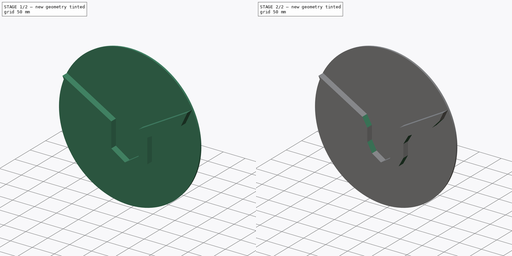
[diagram: build sequence overview — one tinted view per stage of 2, left to right]
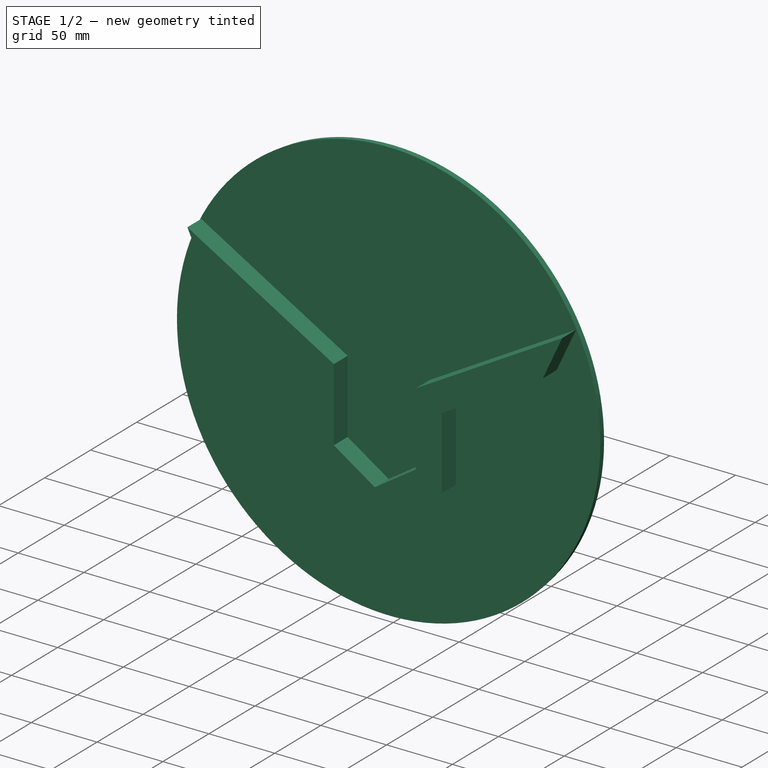
[diagram: stage 1 of 2 — iso view after this stage's code; geometry added in this stage tinted green]
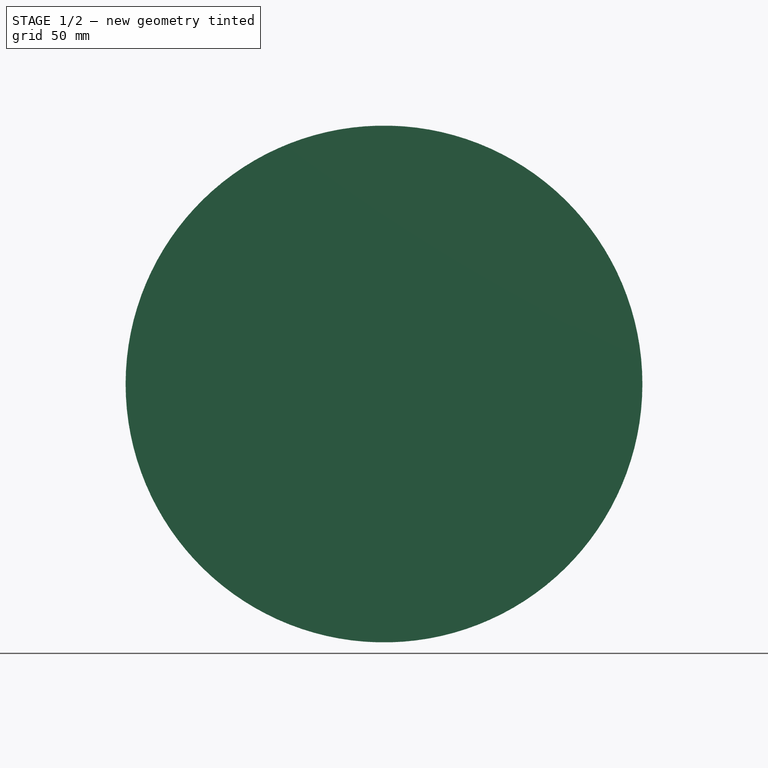
[diagram: stage 1 of 2 — front view after this stage's code; geometry added in this stage tinted green]
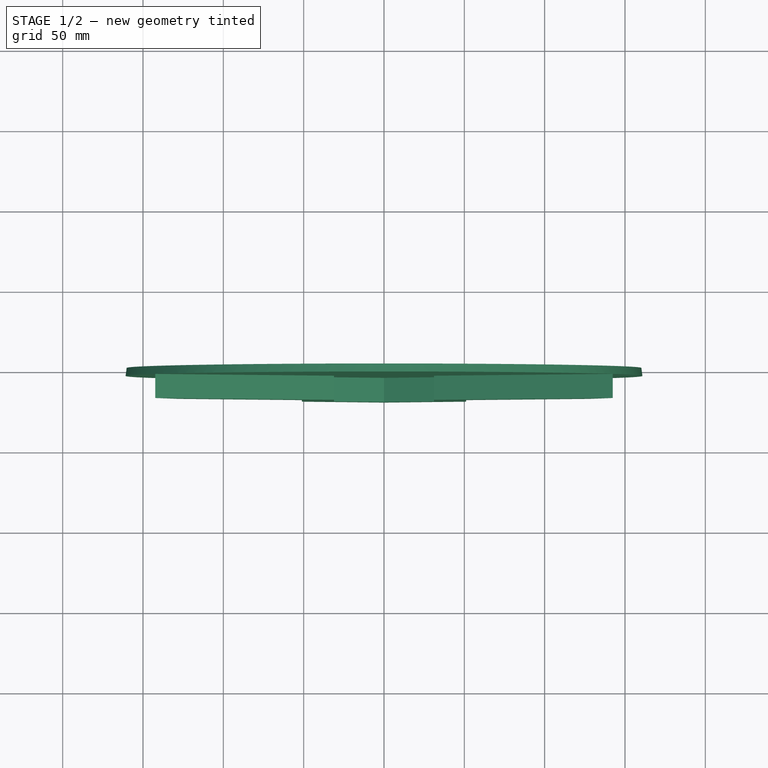
[diagram: stage 1 of 2 — top view after this stage's code; geometry added in this stage tinted green]
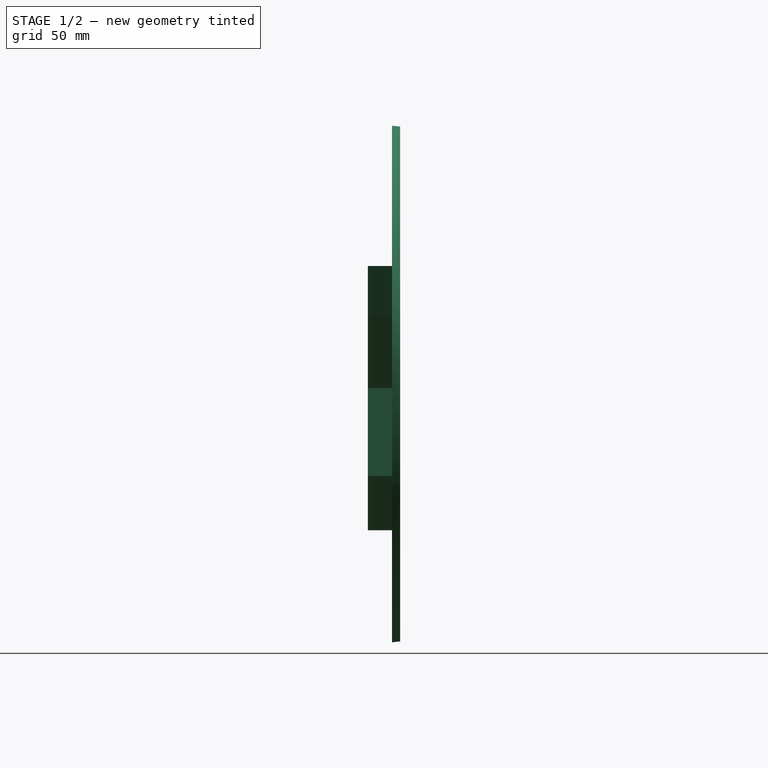
[diagram: stage 1 of 2 — right view after this stage's code; geometry added in this stage tinted green]
FCSTD DOCUMENT  (FreeCAD 1.0R39319 (Git))
Label: FirstFreeBuild
License: All rights reserved
LicenseURL: https://en.wikipedia.org/wiki/All_rights_reserved
objects: Sketcher::SketchObject×2, PartDesign::Pad×2, PartDesign::Chamfer×1, PartDesign::Body×1
note: 14 computed .brp shape members not serialized (recipe doc carries the construction recipe); baked Part::Feature solids carry a one-line shape summary decoded from their .brp

FEATURE [Sketcher::SketchObject] Sketch
  ArcFitTolerance = 1e-06
  AttachmentSupport = -> [XZ_Plane]
  FullyConstrained = false
  MakeInternals = false
  MapMode = 5
  Placement = pos=(0,0,0) rot=(1,0,0;1.5708rad)
  sketch-geometry (14):
    g0: LineSegment StartX=0 StartY=-88.6453 StartZ=0 EndX=51.1183 EndY=-54.9733 EndZ=0
    g1: LineSegment StartX=51.1183 StartY=-54.9733 StartZ=0 EndX=51.1183 EndY=0 EndZ=0
    g2: LineSegment StartX=51.1183 StartY=0 StartZ=0 EndX=127.67 EndY=44.1971 EndZ=0
    g3: LineSegment StartX=127.67 StartY=44.1971 StartZ=0 EndX=142.406 EndY=75.7991 EndZ=0
    g4: LineSegment StartX=142.406 StartY=75.7991 StartZ=0 EndX=31.1183 EndY=11.547 EndZ=0
    g5: LineSegment StartX=31.1183 StartY=11.547 StartZ=0 EndX=31.1183 EndY=-44.1984 EndZ=0
    g6: LineSegment StartX=31.1183 StartY=-44.1984 StartZ=0 EndX=-3.6e-15 EndY=-64.6962 EndZ=0
    g7: LineSegment StartX=0 StartY=-88.6453 StartZ=0 EndX=-51.1183 EndY=-54.9733 EndZ=0
    g8: LineSegment StartX=-51.1183 StartY=-54.9733 StartZ=0 EndX=-51.1183 EndY=0 EndZ=0
    g9: LineSegment StartX=-51.1183 StartY=0 StartZ=0 EndX=-127.67 EndY=44.1971 EndZ=0
    g10: LineSegment StartX=-127.67 StartY=44.1971 StartZ=0 EndX=-142.406 EndY=75.7991 EndZ=0
    g11: LineSegment StartX=-142.406 StartY=75.7991 StartZ=0 EndX=-31.1183 EndY=11.547 EndZ=0
    g12: LineSegment StartX=-31.1183 StartY=11.547 StartZ=0 EndX=-31.1183 EndY=-44.1984 EndZ=0
    g13: LineSegment StartX=-31.1183 StartY=-44.1984 StartZ=0 EndX=0 EndY=-64.6962 EndZ=0
  constraints (38):
    c: PointOnObject(g0,g-2)
    c: Coincident(g0,g1)
    c: PointOnObject(g1,g-1)
    c: Vertical(g1)
    c: Coincident(g1,g2)
    c: Coincident(g2,g3)
    c: Coincident(g3,g4)
    c: Coincident(g4,g5)
    c: Vertical(g5)
    c: Coincident(g5,g6)
    c: PointOnObject(g6,g-2)
    c: Coincident(g7,g8)
    c: Vertical(g8)
    c: Coincident(g8,g9)
    c: Coincident(g9,g10)
    c: Coincident(g10,g11)
    c: Coincident(g11,g12)
    c: Vertical(g12)
    c: Coincident(g12,g13)
    c: Horizontal(g10,g3)
    c: Horizontal(g4,g11)
    c: Horizontal(g1,g8)
    c: Horizontal(g12,g5)
    c: Horizontal(g7,g0)
    c: Distance(g1,g5) = 20
    c: Parallel(g4,g2)
    c: Distance(g4,g2) = 20
    c: Parallel(g6,g0)
    c: Parallel(g13,g7)
    c: Distance(g0,g6) = 20
    c: Distance(g7,g13) = 20
    c: Parallel(g11,g9)
    c: Distance(g9,g11) = 20
    c: Angle(g10,g11) = 0.610865
    c: Angle(g4,g3) = 0.610865
    c: Coincident(g7,g0)
    c: Coincident(g6,g13)
    c: Angle(g5,g4) = 2.0944
FEATURE [PartDesign::Pad] Pad
  Direction = (0,-1,2e-16)
  Length = 20
  Length2 = 10
  Placement = pos=(0,0,0) rot=(1,0,0;1.5708rad)
  Profile = -> Sketch
  ReferenceAxis = -> Sketch [N_Axis]
  Refine = true
  Suppressed = false
  Type = 0
FEATURE [Sketcher::SketchObject] Sketch001
  ArcFitTolerance = 1e-06
  AttachmentSupport = -> [XZ_Plane]
  ExternalGeometry = -> [Pad]
  FullyConstrained = false
  MakeInternals = false
  MapMode = 5
  Placement = pos=(0,0,0) rot=(1,0,0;1.5708rad)
  sketch-geometry (1):
    g0: Circle CenterX=-1.787e-13 CenterY=2.38974 CenterZ=0 NormalX=0 NormalY=0 NormalZ=1 AngleXU=0 Radius=160.214
  constraints (2):
    c: PointOnObject(g-4,g0)
    c: PointOnObject(g-3,g0)
FEATURE [PartDesign::Pad] Pad001
  BaseFeature = -> Pad
  Direction = (0,-1,2e-16)
  Length = 5
  Length2 = 10
  Placement = pos=(0,0,0) rot=(1,0,0;1.5708rad)
  Profile = -> Sketch001
  ReferenceAxis = -> Sketch001 [N_Axis]
  Refine = true
  Suppressed = false
  TaperAngle = 7
  Type = 0
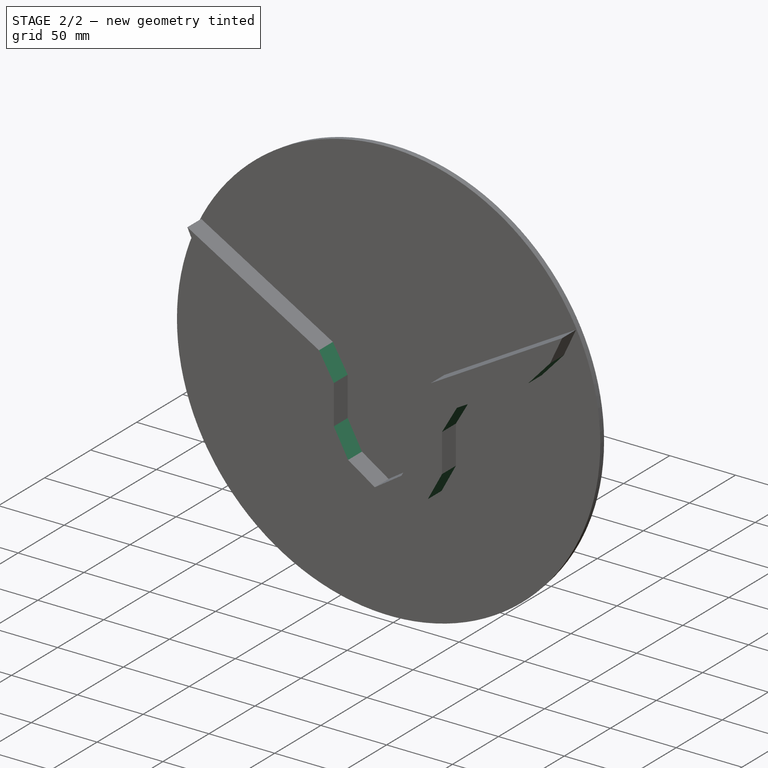
[diagram: stage 2 of 2 — iso view after this stage's code; geometry added in this stage tinted green]
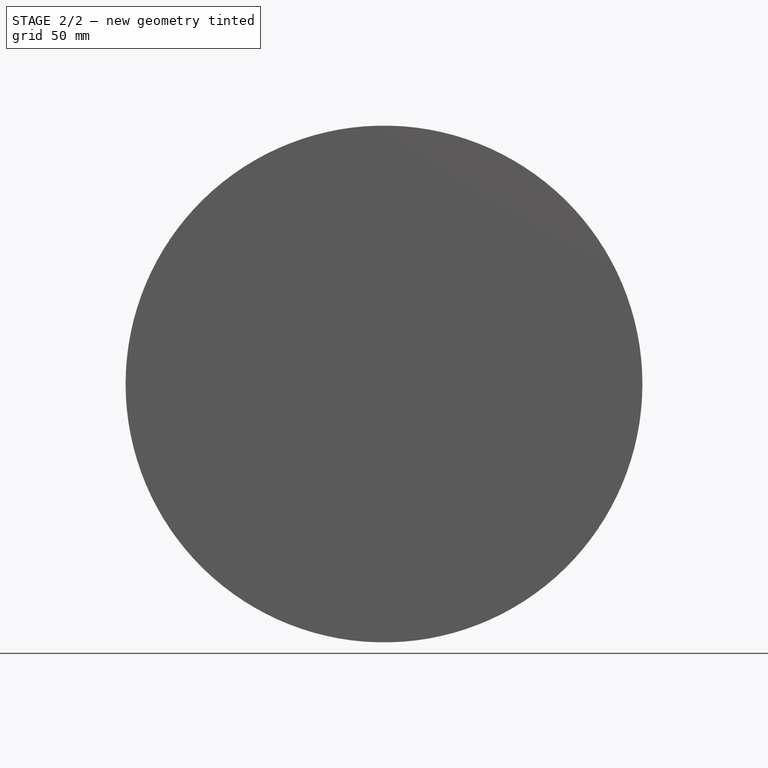
[diagram: stage 2 of 2 — front view after this stage's code; geometry added in this stage tinted green]
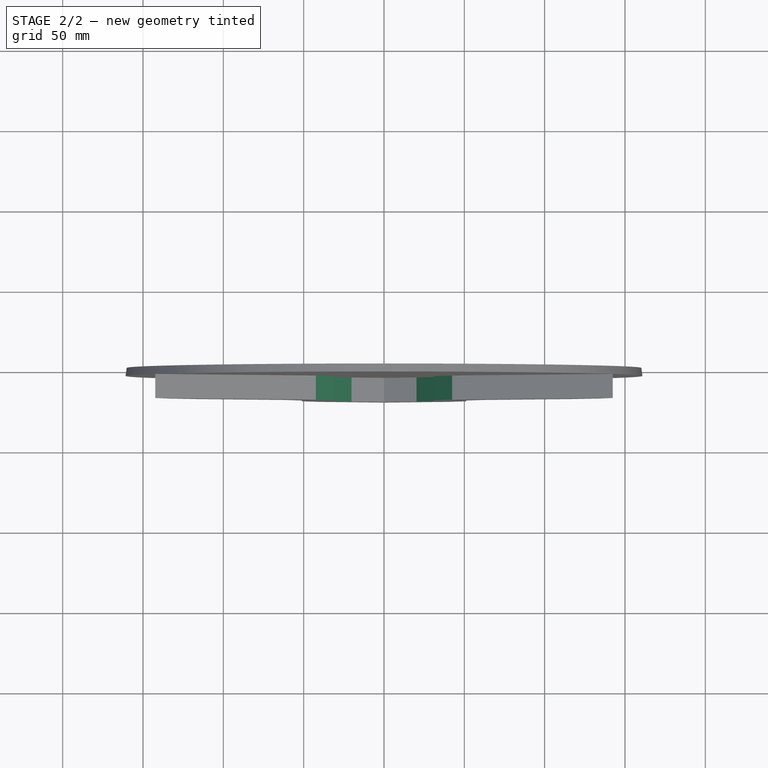
[diagram: stage 2 of 2 — top view after this stage's code; geometry added in this stage tinted green]
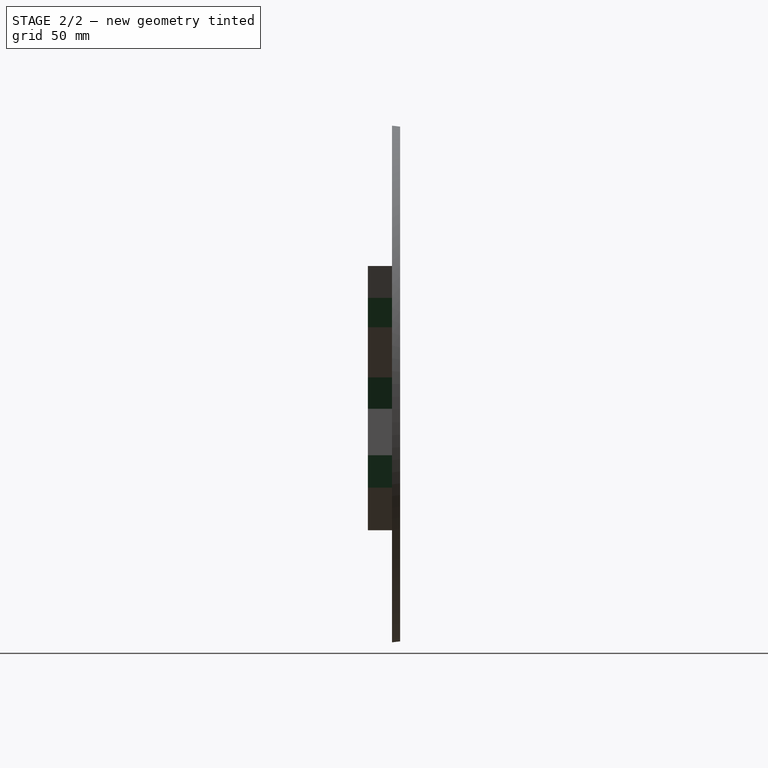
[diagram: stage 2 of 2 — right view after this stage's code; geometry added in this stage tinted green]
FEATURE [PartDesign::Chamfer] Chamfer
  Angle = 45
  Base = -> Pad001 [Edge29,Edge31,Edge46,Edge44,Edge42,Edge38,Edge36,Edge20,Edge23,Edge25]
  BaseFeature = -> Pad001
  ChamferType = 0
  FlipDirection = false
  Placement = pos=(0,0,0) rot=(1,0,0;1.5708rad)
  Refine = true
  Size = 13
  Size2 = 15
  SupportTransform = false
  Suppressed = false
  UseAllEdges = false
FEATURE [PartDesign::Body] Body
  AllowCompound = false
  Group = -> [Sketch,Pad,Sketch001,Pad001,Chamfer]
  Origin = -> Origin
  Tip = -> Chamfer
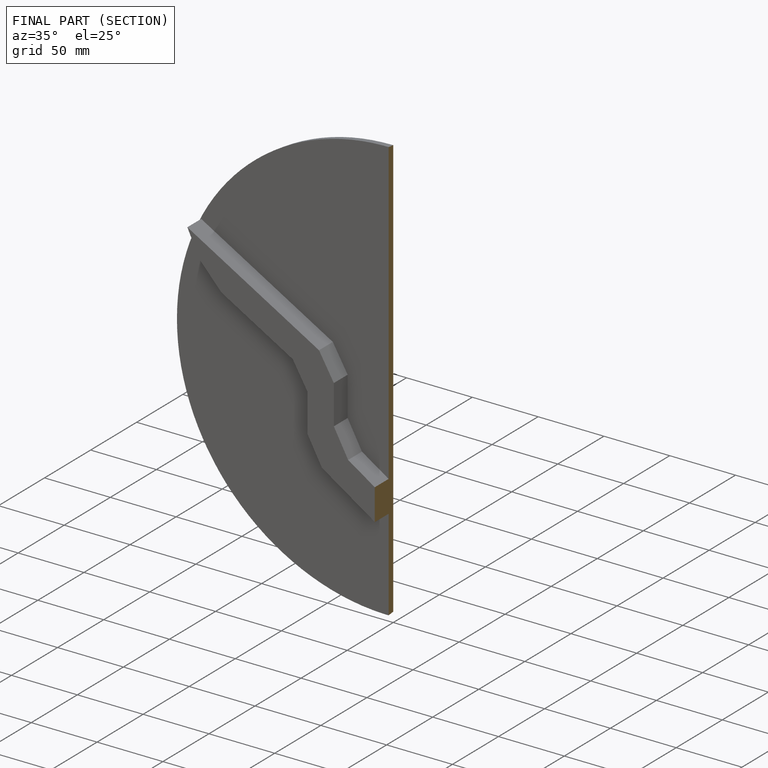
[diagram: finished part — half-section view (interior)]
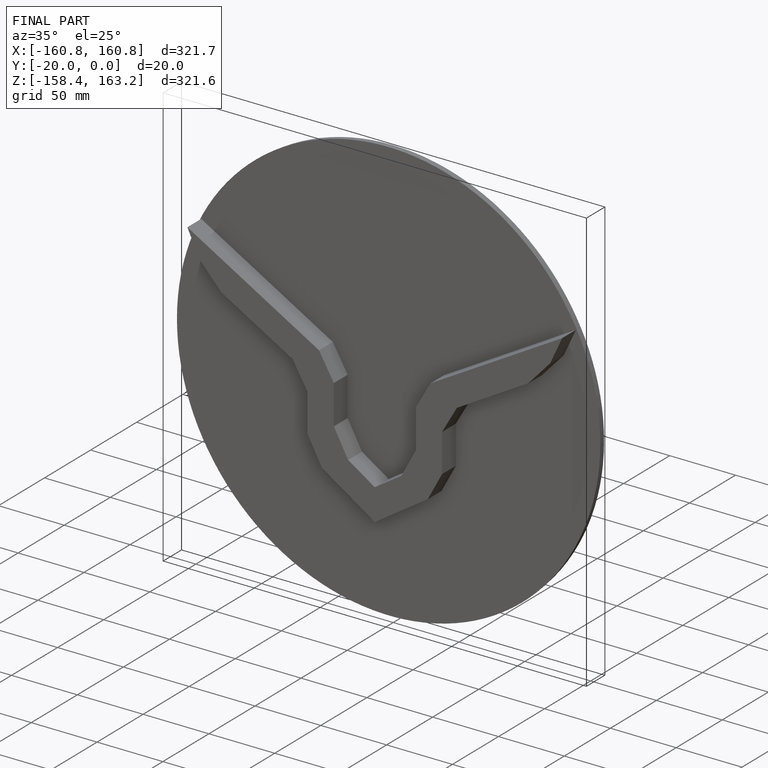
[diagram: finished part — iso view with bounding-box wireframe]
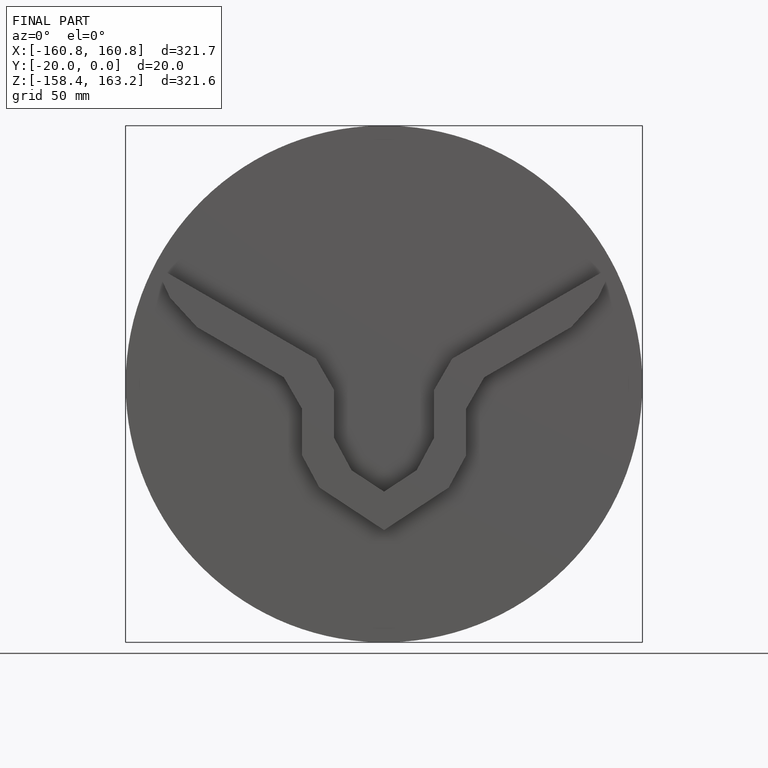
[diagram: finished part — front view with bounding-box wireframe]
